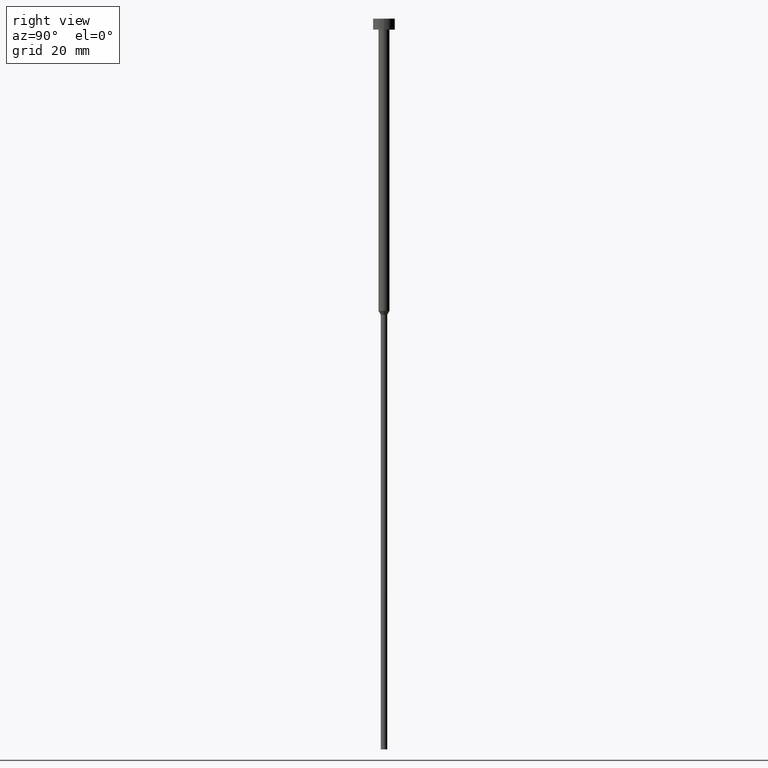
[diagram: clean part render]
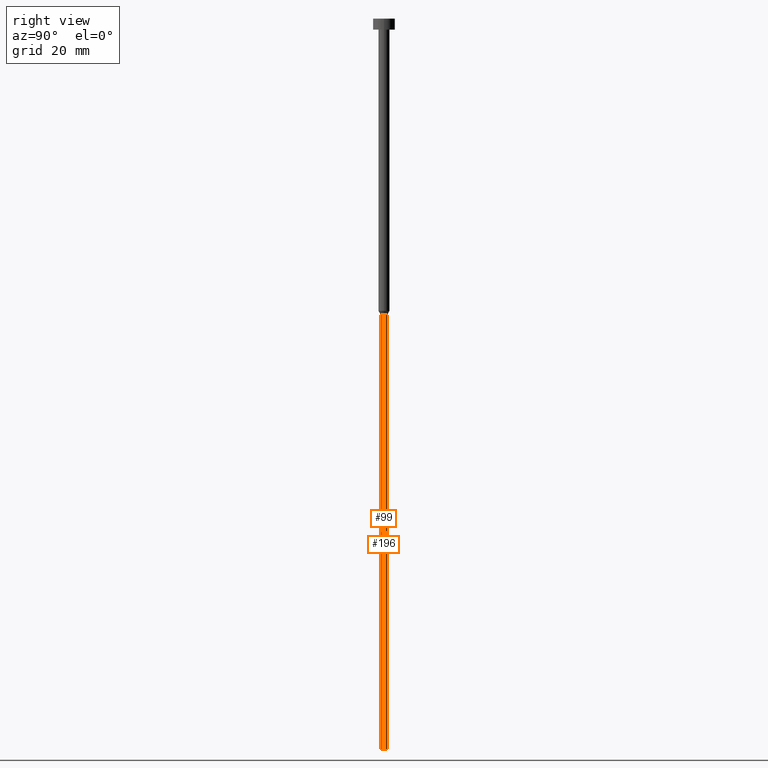
[diagram: same view with one multi-face feature highlighted, each face labeled with its STEP entity id]
A machine part, right view. The highlighted faces form ONE feature: a constant-radius fillet chain: 2 tangent blend faces with common blend radius 0.9 mm. The faces share edges in the B-rep.
Their STEP definitions:
[1] entity #99 (Cylinder):
#21 = VECTOR ( 'NONE', #74, 1000.000000000000000 ) ;
#37 = LINE ( 'NONE', #97, #21 ) ;
#38 = DIRECTION ( 'NONE',  ( 1.000000000000000000, 0.000000000000000000, 0.000000000000000000 ) ) ;
#54 = ORIENTED_EDGE ( 'NONE', *, *, #131, .T. ) ;
#66 = DIRECTION ( 'NONE',  ( 1.000000000000000000, 0.000000000000000000, 0.000000000000000000 ) ) ;
#74 = DIRECTION ( 'NONE',  ( -0.000000000000000000, -0.000000000000000000, 1.000000000000000000 ) ) ;
#82 = AXIS2_PLACEMENT_3D ( 'NONE', #169, #282, #38 ) ;
#91 = EDGE_CURVE ( 'NONE', #112, #221, #37, .T. ) ;
#97 = CARTESIAN_POINT ( 'NONE',  ( 0.9000000000000000222, 0.000000000000000000, 0.000000000000000000 ) ) ;
#99 = ADVANCED_FACE ( 'NONE', ( #252 ), #229, .T. ) ;
#103 = DIRECTION ( 'NONE',  ( -0.000000000000000000, -0.000000000000000000, 1.000000000000000000 ) ) ;
#108 = CARTESIAN_POINT ( 'NONE',  ( 0.9000000000000000222, 0.000000000000000000, -81.03923048454132072 ) ) ;
#112 = VERTEX_POINT ( 'NONE', #170 ) ;
#131 = EDGE_CURVE ( 'NONE', #165, #112, #299, .T. ) ;
#134 = CARTESIAN_POINT ( 'NONE',  ( -0.9000000000000000222, 1.102182119232617788E-16, -81.03923048454132072 ) ) ;
#136 = ORIENTED_EDGE ( 'NONE', *, *, #91, .T. ) ;
#153 = LINE ( 'NONE', #323, #258 ) ;
#165 = VERTEX_POINT ( 'NONE', #211 ) ;
#169 = CARTESIAN_POINT ( 'NONE',  ( 0.000000000000000000, 0.000000000000000000, -200.0000000000000000 ) ) ;
#170 = CARTESIAN_POINT ( 'NONE',  ( 0.9000000000000000222, 0.000000000000000000, -200.0000000000000000 ) ) ;
#179 = CIRCLE ( 'NONE', #214, 0.9000000000000000222 ) ;
#183 = AXIS2_PLACEMENT_3D ( 'NONE', #204, #222, #66 ) ;
#187 = ORIENTED_EDGE ( 'NONE', *, *, #226, .F. ) ;
#204 = CARTESIAN_POINT ( 'NONE',  ( 0.000000000000000000, 0.000000000000000000, 0.000000000000000000 ) ) ;
#205 = VERTEX_POINT ( 'NONE', #134 ) ;
#211 = CARTESIAN_POINT ( 'NONE',  ( -0.9000000000000000222, 1.102182119232617788E-16, -200.0000000000000000 ) ) ;
#214 = AXIS2_PLACEMENT_3D ( 'NONE', #354, #103, #297 ) ;
#221 = VERTEX_POINT ( 'NONE', #108 ) ;
#222 = DIRECTION ( 'NONE',  ( -0.000000000000000000, -0.000000000000000000, 1.000000000000000000 ) ) ;
#226 = EDGE_CURVE ( 'NONE', #205, #221, #179, .T. ) ;
#229 = CYLINDRICAL_SURFACE ( 'NONE', #183, 0.9000000000000000222 ) ;
#245 = ORIENTED_EDGE ( 'NONE', *, *, #303, .F. ) ;
#252 = FACE_OUTER_BOUND ( 'NONE', #335, .T. ) ;
#258 = VECTOR ( 'NONE', #324, 1000.000000000000000 ) ;
#282 = DIRECTION ( 'NONE',  ( -0.000000000000000000, -0.000000000000000000, 1.000000000000000000 ) ) ;
#297 = DIRECTION ( 'NONE',  ( 1.000000000000000000, 0.000000000000000000, 0.000000000000000000 ) ) ;
#299 = CIRCLE ( 'NONE', #82, 0.9000000000000000222 ) ;
#303 = EDGE_CURVE ( 'NONE', #165, #205, #153, .T. ) ;
#323 = CARTESIAN_POINT ( 'NONE',  ( -0.9000000000000000222, 1.102182119232617788E-16, 0.000000000000000000 ) ) ;
#324 = DIRECTION ( 'NONE',  ( -0.000000000000000000, -0.000000000000000000, 1.000000000000000000 ) ) ;
#335 = EDGE_LOOP ( 'NONE', ( #245, #54, #136, #187 ) ) ;
#354 = CARTESIAN_POINT ( 'NONE',  ( 0.000000000000000000, 0.000000000000000000, -81.03923048454132072 ) ) ;
[2] entity #196 (Cylinder):
#8 = ORIENTED_EDGE ( 'NONE', *, *, #91, .F. ) ;
#11 = EDGE_CURVE ( 'NONE', #221, #205, #51, .T. ) ;
#21 = VECTOR ( 'NONE', #74, 1000.000000000000000 ) ;
#22 = AXIS2_PLACEMENT_3D ( 'NONE', #156, #348, #210 ) ;
#26 = FACE_OUTER_BOUND ( 'NONE', #218, .T. ) ;
#32 = ORIENTED_EDGE ( 'NONE', *, *, #11, .F. ) ;
#37 = LINE ( 'NONE', #97, #21 ) ;
#51 = CIRCLE ( 'NONE', #247, 0.9000000000000000222 ) ;
#74 = DIRECTION ( 'NONE',  ( -0.000000000000000000, -0.000000000000000000, 1.000000000000000000 ) ) ;
#91 = EDGE_CURVE ( 'NONE', #112, #221, #37, .T. ) ;
#97 = CARTESIAN_POINT ( 'NONE',  ( 0.9000000000000000222, 0.000000000000000000, 0.000000000000000000 ) ) ;
#108 = CARTESIAN_POINT ( 'NONE',  ( 0.9000000000000000222, 0.000000000000000000, -81.03923048454132072 ) ) ;
#112 = VERTEX_POINT ( 'NONE', #170 ) ;
#118 = AXIS2_PLACEMENT_3D ( 'NONE', #238, #237, #264 ) ;
#124 = ORIENTED_EDGE ( 'NONE', *, *, #303, .T. ) ;
#134 = CARTESIAN_POINT ( 'NONE',  ( -0.9000000000000000222, 1.102182119232617788E-16, -81.03923048454132072 ) ) ;
#153 = LINE ( 'NONE', #323, #258 ) ;
#156 = CARTESIAN_POINT ( 'NONE',  ( 0.000000000000000000, 0.000000000000000000, -200.0000000000000000 ) ) ;
#165 = VERTEX_POINT ( 'NONE', #211 ) ;
#166 = ORIENTED_EDGE ( 'NONE', *, *, #181, .T. ) ;
#170 = CARTESIAN_POINT ( 'NONE',  ( 0.9000000000000000222, 0.000000000000000000, -200.0000000000000000 ) ) ;
#175 = CYLINDRICAL_SURFACE ( 'NONE', #118, 0.9000000000000000222 ) ;
#181 = EDGE_CURVE ( 'NONE', #112, #165, #270, .T. ) ;
#196 = ADVANCED_FACE ( 'NONE', ( #26 ), #175, .T. ) ;
#205 = VERTEX_POINT ( 'NONE', #134 ) ;
#210 = DIRECTION ( 'NONE',  ( 1.000000000000000000, 0.000000000000000000, 0.000000000000000000 ) ) ;
#211 = CARTESIAN_POINT ( 'NONE',  ( -0.9000000000000000222, 1.102182119232617788E-16, -200.0000000000000000 ) ) ;
#218 = EDGE_LOOP ( 'NONE', ( #166, #124, #32, #8 ) ) ;
#221 = VERTEX_POINT ( 'NONE', #108 ) ;
#224 = DIRECTION ( 'NONE',  ( 1.000000000000000000, 0.000000000000000000, 0.000000000000000000 ) ) ;
#237 = DIRECTION ( 'NONE',  ( -0.000000000000000000, -0.000000000000000000, 1.000000000000000000 ) ) ;
#238 = CARTESIAN_POINT ( 'NONE',  ( 0.000000000000000000, 0.000000000000000000, 0.000000000000000000 ) ) ;
#247 = AXIS2_PLACEMENT_3D ( 'NONE', #259, #341, #224 ) ;
#258 = VECTOR ( 'NONE', #324, 1000.000000000000000 ) ;
#259 = CARTESIAN_POINT ( 'NONE',  ( 0.000000000000000000, 0.000000000000000000, -81.03923048454132072 ) ) ;
#264 = DIRECTION ( 'NONE',  ( 1.000000000000000000, 0.000000000000000000, 0.000000000000000000 ) ) ;
#270 = CIRCLE ( 'NONE', #22, 0.9000000000000000222 ) ;
#303 = EDGE_CURVE ( 'NONE', #165, #205, #153, .T. ) ;
#323 = CARTESIAN_POINT ( 'NONE',  ( -0.9000000000000000222, 1.102182119232617788E-16, 0.000000000000000000 ) ) ;
#324 = DIRECTION ( 'NONE',  ( -0.000000000000000000, -0.000000000000000000, 1.000000000000000000 ) ) ;
#341 = DIRECTION ( 'NONE',  ( -0.000000000000000000, -0.000000000000000000, 1.000000000000000000 ) ) ;
#348 = DIRECTION ( 'NONE',  ( -0.000000000000000000, -0.000000000000000000, 1.000000000000000000 ) ) ;